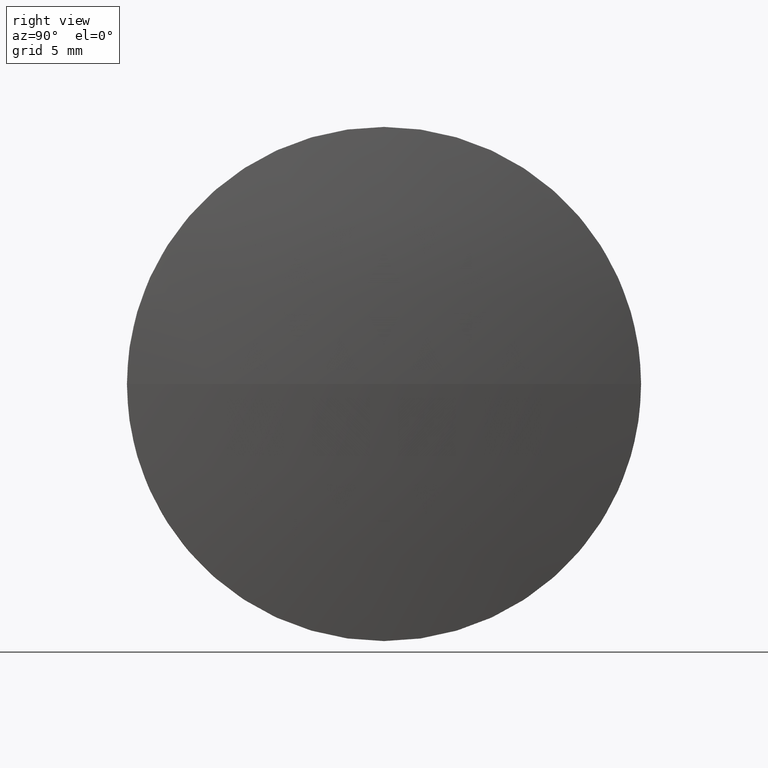
[diagram: clean part render]
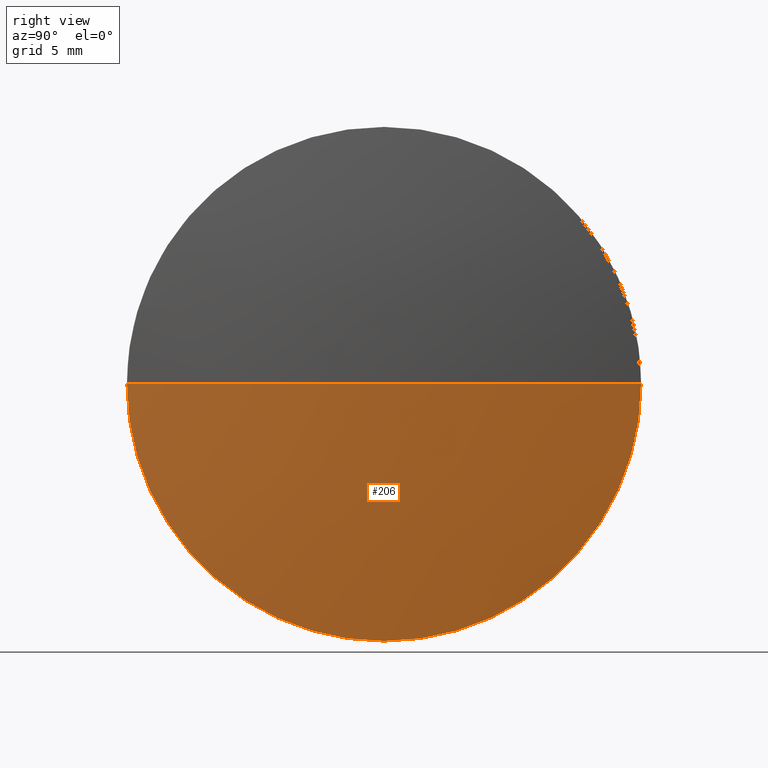
[diagram: same view with one face highlighted and labeled with its STEP entity id]
A machine part, right view. The second image highlights one B-rep face of the part: STEP entity #206.
In plain terms, the highlighted spherical surface has radius 85.3638 mm.
Its self-contained STEP definition (entity closure, byte-faithful):
#1 = AXIS2_PLACEMENT_3D ( 'NONE', #20, #197, #127 ) ;
#2 = CARTESIAN_POINT ( 'NONE',  ( 87.48661080392687900, 48.63209213917348000, -12.70417422867516100 ) ) ;
#14 = DIRECTION ( 'NONE',  ( 0.0000000000000000000, -1.224646799147353200E-016, 1.000000000000000000 ) ) ;
#20 = CARTESIAN_POINT ( 'NONE',  ( 87.48661080392687900, 48.63209213917348000, 0.0000000000000000000 ) ) ;
#29 = EDGE_CURVE ( 'NONE', #280, #303, #163, .T. ) ;
#39 = DIRECTION ( 'NONE',  ( 0.0000000000000000000, 0.0000000000000000000, -1.000000000000000000 ) ) ;
#42 = DIRECTION ( 'NONE',  ( -1.000000000000000000, 0.0000000000000000000, 0.0000000000000000000 ) ) ;
#45 = EDGE_CURVE ( 'NONE', #280, #235, #275, .T. ) ;
#53 = ORIENTED_EDGE ( 'NONE', *, *, #224, .F. ) ;
#73 = CARTESIAN_POINT ( 'NONE',  ( 3.073402634394560600, 48.63209213917353000, 0.0000000000000000000 ) ) ;
#75 = DIRECTION ( 'NONE',  ( -1.000000000000000000, -0.0000000000000000000, -0.0000000000000000000 ) ) ;
#86 = EDGE_LOOP ( 'NONE', ( #119, #142, #53, #243 ) ) ;
#92 = CARTESIAN_POINT ( 'NONE',  ( 3.073402634394560600, 48.63209213917353000, 0.0000000000000000000 ) ) ;
#105 = CARTESIAN_POINT ( 'NONE',  ( 87.48661080392687900, 48.63209213917348000, 0.0000000000000000000 ) ) ;
#109 = EDGE_CURVE ( 'NONE', #303, #272, #239, .T. ) ;
#118 = AXIS2_PLACEMENT_3D ( 'NONE', #92, #14, #297 ) ;
#119 = ORIENTED_EDGE ( 'NONE', *, *, #29, .F. ) ;
#124 = CARTESIAN_POINT ( 'NONE',  ( 87.48661080392689400, 35.92791791049834400, 0.0000000000000000000 ) ) ;
#127 = DIRECTION ( 'NONE',  ( 0.0000000000000000000, 0.0000000000000000000, 1.000000000000000000 ) ) ;
#137 = AXIS2_PLACEMENT_3D ( 'NONE', #271, #39, #42 ) ;
#142 = ORIENTED_EDGE ( 'NONE', *, *, #45, .T. ) ;
#163 = CIRCLE ( 'NONE', #118, 85.36384337824375700 ) ;
#197 = DIRECTION ( 'NONE',  ( -1.000000000000000000, -0.0000000000000000000, -0.0000000000000000000 ) ) ;
#206 = ADVANCED_FACE ( 'NONE', ( #321 ), #260, .T. ) ;
#213 = AXIS2_PLACEMENT_3D ( 'NONE', #73, #227, #299 ) ;
#224 = EDGE_CURVE ( 'NONE', #272, #235, #313, .T. ) ;
#227 = DIRECTION ( 'NONE',  ( 0.0000000000000000000, 0.0000000000000000000, 1.000000000000000000 ) ) ;
#235 = VERTEX_POINT ( 'NONE', #124 ) ;
#239 = CIRCLE ( 'NONE', #279, 12.70417422867516100 ) ;
#243 = ORIENTED_EDGE ( 'NONE', *, *, #109, .F. ) ;
#250 = CARTESIAN_POINT ( 'NONE',  ( 87.48661080392689400, 61.33626636784865100, 1.555812630495729100E-015 ) ) ;
#260 = SPHERICAL_SURFACE ( 'NONE', #213, 85.36384337824375700 ) ;
#271 = CARTESIAN_POINT ( 'NONE',  ( 3.073402634394560600, 48.63209213917353000, 0.0000000000000000000 ) ) ;
#272 = VERTEX_POINT ( 'NONE', #2 ) ;
#275 = CIRCLE ( 'NONE', #137, 85.36384337824375700 ) ;
#276 = DIRECTION ( 'NONE',  ( 0.0000000000000000000, 0.0000000000000000000, 1.000000000000000000 ) ) ;
#279 = AXIS2_PLACEMENT_3D ( 'NONE', #105, #75, #276 ) ;
#280 = VERTEX_POINT ( 'NONE', #298 ) ;
#297 = DIRECTION ( 'NONE',  ( 0.0000000000000000000, -1.000000000000000000, -1.224646799147353200E-016 ) ) ;
#298 = CARTESIAN_POINT ( 'NONE',  ( 88.43724601263832600, 48.63209213917352300, 0.0000000000000000000 ) ) ;
#299 = DIRECTION ( 'NONE',  ( 0.0000000000000000000, -1.000000000000000000, 0.0000000000000000000 ) ) ;
#303 = VERTEX_POINT ( 'NONE', #250 ) ;
#313 = CIRCLE ( 'NONE', #1, 12.70417422867516100 ) ;
#321 = FACE_OUTER_BOUND ( 'NONE', #86, .T. ) ;